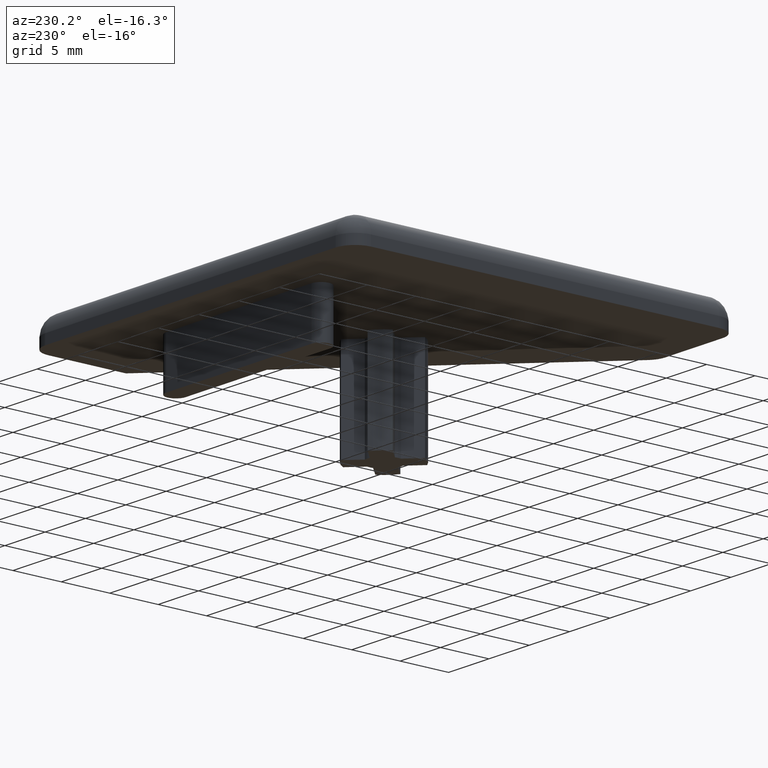
[diagram: clean part render]
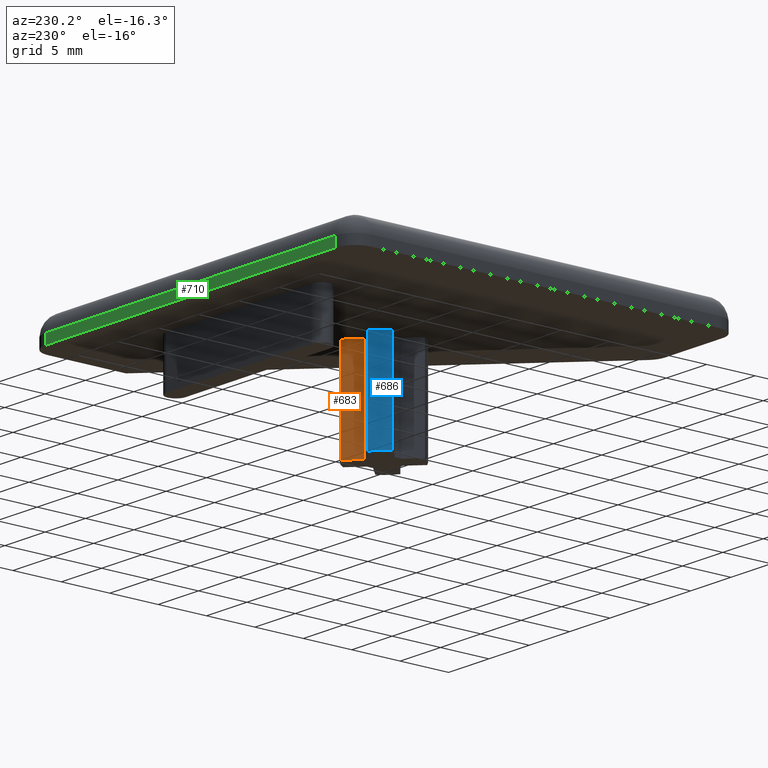
[diagram: same view with three faces highlighted in distinct colors, each labeled with its STEP entity id]
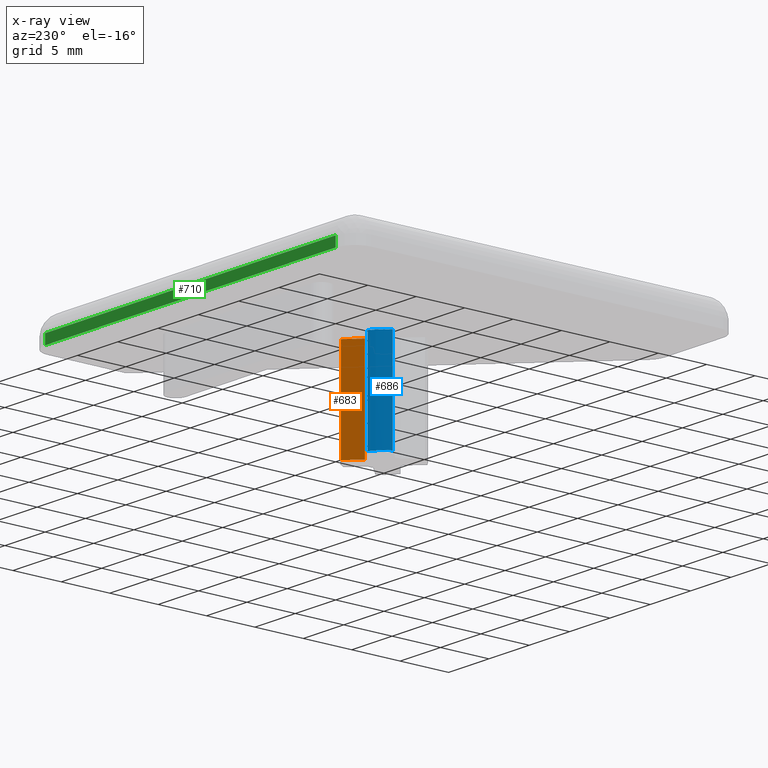
[diagram: x-ray of the same camera — body ghosted, the three highlighted faces saturated]
A machine part, auxiliary view with three faces highlighted in distinct colors.
The next image is the same camera in x-ray (body ghosted, the three faces saturated) — at least one of them is partly hidden behind the body in this view.
Their STEP definitions:

[orange] entity #683 — the highlighted planar face has unit normal (-0.7071, 0.7071, 0).
#25=PLANE($,#738);
#49=FACE_OUTER_BOUND($,#90,.T.);
#90=EDGE_LOOP($,(#489,#490,#491,#492));
#142=LINE($,#1079,#206);
#143=LINE($,#1082,#207);
#144=LINE($,#1084,#208);
#145=LINE($,#1085,#209);
#206=VECTOR($,#855,10.);
#207=VECTOR($,#858,1.91796130461518);
#208=VECTOR($,#859,1.91796130461518);
#209=VECTOR($,#860,10.);
#307=VERTEX_POINT($,#1075);
#308=VERTEX_POINT($,#1077);
#309=VERTEX_POINT($,#1081);
#310=VERTEX_POINT($,#1083);
#379=EDGE_CURVE($,#307,#308,#142,.T.);
#380=EDGE_CURVE($,#307,#309,#143,.T.);
#381=EDGE_CURVE($,#310,#308,#144,.T.);
#382=EDGE_CURVE($,#309,#310,#145,.T.);
#489=ORIENTED_EDGE($,*,*,#380,.F.);
#490=ORIENTED_EDGE($,*,*,#379,.T.);
#491=ORIENTED_EDGE($,*,*,#381,.F.);
#492=ORIENTED_EDGE($,*,*,#382,.F.);
#683=ADVANCED_FACE($,(#49),#25,.T.);
#738=AXIS2_PLACEMENT_3D($,#1080,#856,#857);
#855=DIRECTION($,(0.,0.,-1.));
#856=DIRECTION('center_axis',(-0.707106781186548,0.707106781186548,0.));
#857=DIRECTION('ref_axis',(0.707106781186548,0.707106781186548,0.));
#858=DIRECTION($,(-0.707106781186548,-0.707106781186548,0.));
#859=DIRECTION($,(0.707106781186547,0.707106781186547,0.));
#860=DIRECTION($,(0.,0.,-1.));
#1075=CARTESIAN_POINT('',(21.6646014639397,-16.9211849736872,0.));
#1077=CARTESIAN_POINT('',(21.6646014639397,-16.9211849736872,-10.));
#1079=CARTESIAN_POINT($,(21.6646014639397,-16.9211849736872,0.));
#1080=CARTESIAN_POINT('Origin',(20.308398019393,-18.277388418234,0.));
#1081=CARTESIAN_POINT('',(20.308398019393,-18.277388418234,0.));
#1082=CARTESIAN_POINT($,(19.8006456191032,-18.7851408185237,0.));
#1083=CARTESIAN_POINT('',(20.308398019393,-18.277388418234,-10.));
#1084=CARTESIAN_POINT($,(20.308398019393,-18.277388418234,-10.));
#1085=CARTESIAN_POINT($,(20.308398019393,-18.277388418234,0.));

[blue] entity #686 — the highlighted cylindrical surface (partial cylindrical patch) has radius 3.5 mm, axis along (0, 0, -1).
#52=FACE_OUTER_BOUND($,#93,.T.);
#93=EDGE_LOOP($,(#501,#502,#503,#504));
#149=LINE($,#1097,#213);
#150=LINE($,#1103,#214);
#213=VECTOR($,#872,10.);
#214=VECTOR($,#879,10.);
#265=CIRCLE($,#744,3.5);
#266=CIRCLE($,#745,3.5);
#313=VERTEX_POINT($,#1093);
#314=VERTEX_POINT($,#1095);
#315=VERTEX_POINT($,#1099);
#316=VERTEX_POINT($,#1101);
#388=EDGE_CURVE($,#313,#314,#149,.T.);
#389=EDGE_CURVE($,#313,#315,#265,.T.);
#390=EDGE_CURVE($,#316,#314,#266,.T.);
#391=EDGE_CURVE($,#315,#316,#150,.T.);
#501=ORIENTED_EDGE($,*,*,#389,.F.);
#502=ORIENTED_EDGE($,*,*,#388,.T.);
#503=ORIENTED_EDGE($,*,*,#390,.F.);
#504=ORIENTED_EDGE($,*,*,#391,.F.);
#661=CYLINDRICAL_SURFACE($,#743,3.5);
#686=ADVANCED_FACE($,(#52),#661,.T.);
#743=AXIS2_PLACEMENT_3D($,#1098,#873,#874);
#744=AXIS2_PLACEMENT_3D($,#1100,#875,#876);
#745=AXIS2_PLACEMENT_3D($,#1102,#877,#878);
#872=DIRECTION($,(0.,0.,-1.));
#873=DIRECTION('center_axis',(0.,0.,-1.));
#874=DIRECTION('ref_axis',(-1.,0.,0.));
#875=DIRECTION('center_axis',(0.,0.,1.));
#876=DIRECTION('ref_axis',(-1.,0.,0.));
#877=DIRECTION('center_axis',(0.,0.,-1.));
#878=DIRECTION('ref_axis',(-1.,0.,0.));
#879=DIRECTION($,(0.,0.,-1.));
#1093=CARTESIAN_POINT('',(18.3353985360603,-16.9211849736872,0.));
#1095=CARTESIAN_POINT('',(18.3353985360603,-16.9211849736872,-10.));
#1097=CARTESIAN_POINT($,(18.3353985360603,-16.9211849736872,0.));
#1098=CARTESIAN_POINT('Origin',(20.,-20.,0.));
#1099=CARTESIAN_POINT('',(16.9211849736872,-18.3353985360603,0.));
#1100=CARTESIAN_POINT('Origin',(20.,-20.,0.));
#1101=CARTESIAN_POINT('',(16.9211849736872,-18.3353985360603,-10.));
#1102=CARTESIAN_POINT('Origin',(20.,-20.,-10.));
#1103=CARTESIAN_POINT($,(16.9211849736872,-18.3353985360603,0.));

[green] entity #710 — the highlighted planar face has unit normal (0, 1, 0).
#34=PLANE($,#792);
#76=FACE_OUTER_BOUND($,#117,.T.);
#117=EDGE_LOOP($,(#605,#606,#607,#608));
#170=LINE($,#1183,#234);
#173=LINE($,#1198,#237);
#176=LINE($,#1202,#240);
#184=LINE($,#1218,#248);
#234=VECTOR($,#965,1.);
#237=VECTOR($,#982,1.);
#240=VECTOR($,#987,36.);
#248=VECTOR($,#1007,36.);
#339=VERTEX_POINT($,#1172);
#342=VERTEX_POINT($,#1179);
#346=VERTEX_POINT($,#1191);
#348=VERTEX_POINT($,#1196);
#429=EDGE_CURVE($,#339,#342,#170,.T.);
#436=EDGE_CURVE($,#348,#346,#173,.T.);
#439=EDGE_CURVE($,#346,#339,#176,.T.);
#448=EDGE_CURVE($,#342,#348,#184,.T.);
#605=ORIENTED_EDGE($,*,*,#429,.F.);
#606=ORIENTED_EDGE($,*,*,#439,.F.);
#607=ORIENTED_EDGE($,*,*,#436,.F.);
#608=ORIENTED_EDGE($,*,*,#448,.F.);
#710=ADVANCED_FACE($,(#76),#34,.T.);
#792=AXIS2_PLACEMENT_3D($,#1217,#1005,#1006);
#965=DIRECTION($,(0.,0.,-1.));
#982=DIRECTION($,(0.,0.,1.));
#987=DIRECTION($,(-1.,0.,0.));
#1005=DIRECTION('center_axis',(0.,1.,0.));
#1006=DIRECTION('ref_axis',(-1.,0.,0.));
#1007=DIRECTION($,(1.,0.,0.));
#1172=CARTESIAN_POINT('',(2.,0.,1.));
#1179=CARTESIAN_POINT('',(2.,0.,0.));
#1183=CARTESIAN_POINT($,(2.,0.,0.));
#1191=CARTESIAN_POINT('',(38.,0.,1.));
#1196=CARTESIAN_POINT('',(38.,0.,0.));
#1198=CARTESIAN_POINT($,(38.,0.,0.));
#1202=CARTESIAN_POINT($,(28.1117688164019,0.,1.));
#1217=CARTESIAN_POINT('Origin',(40.,0.,0.));
#1218=CARTESIAN_POINT($,(0.,0.,0.));